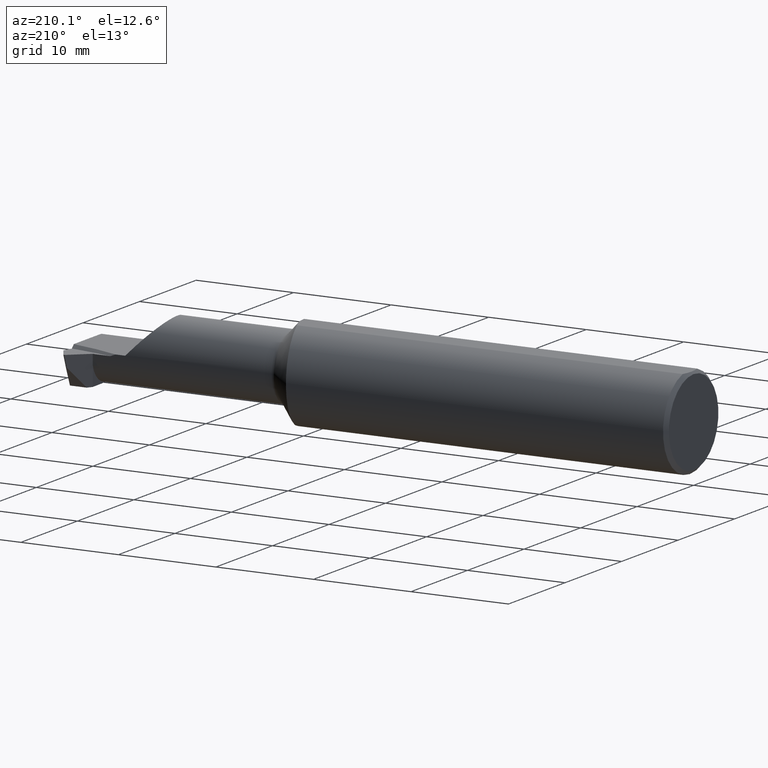
[diagram: clean part render]
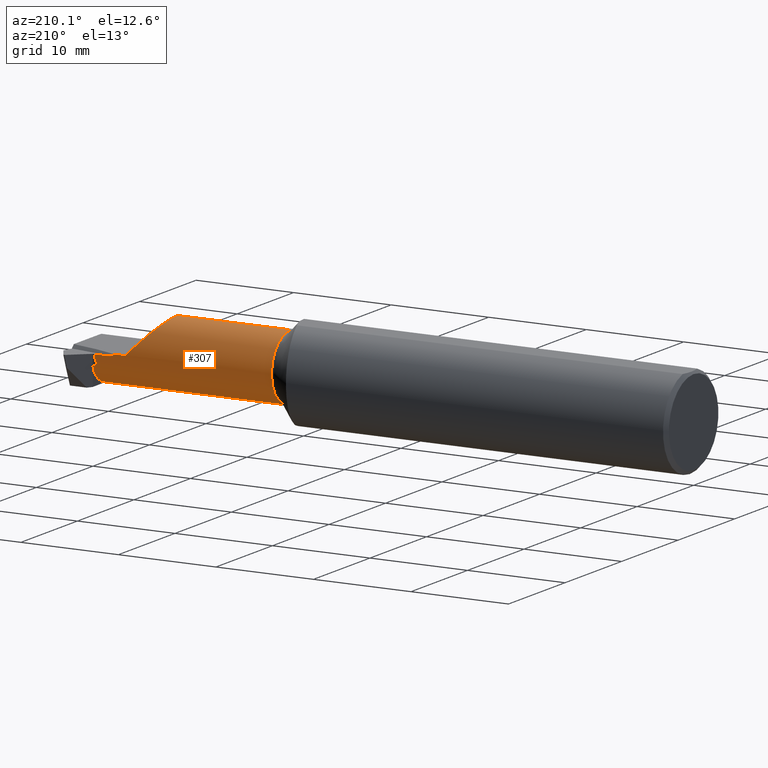
[diagram: same view with one face highlighted and labeled with its STEP entity id]
A machine part, auxiliary view. The second image highlights one B-rep face of the part: STEP entity #307.
In plain terms, the highlighted cylindrical surface (partial cylindrical patch) has radius 3.3782 mm, axis along (-1, -0, -0).
Its self-contained STEP definition (entity closure, byte-faithful):
#12 = VECTOR ( 'NONE', #880, 39.37007874015748143 ) ;
#18 = EDGE_CURVE ( 'NONE', #390, #544, #498, .T. ) ;
#27 = CIRCLE ( 'NONE', #253, 0.1330000000000000071 ) ;
#36 = FACE_OUTER_BOUND ( 'NONE', #327, .T. ) ;
#42 = VERTEX_POINT ( 'NONE', #507 ) ;
#49 = EDGE_CURVE ( 'NONE', #414, #195, #397, .T. ) ;
#66 = CARTESIAN_POINT ( 'NONE',  ( 1.650000000000000133, -0.05834999999999980480, -0.1330000000000000071 ) ) ;
#74 = VERTEX_POINT ( 'NONE', #1078 ) ;
#80 = VERTEX_POINT ( 'NONE', #268 ) ;
#90 = CARTESIAN_POINT ( 'NONE',  ( 2.377439043531619944, 0.07438306707720576672, -0.008422167433508244427 ) ) ;
#99 = AXIS2_PLACEMENT_3D ( 'NONE', #329, #141, #395 ) ;
#103 = CARTESIAN_POINT ( 'NONE',  ( 2.297510475739600544, 0.07465000000000018843, -0.002930700206672966993 ) ) ;
#106 = VERTEX_POINT ( 'NONE', #437 ) ;
#121 = ORIENTED_EDGE ( 'NONE', *, *, #530, .T. ) ;
#137 = DIRECTION ( 'NONE',  ( 0.000000000000000000, 0.000000000000000000, 1.000000000000000000 ) ) ;
#141 = DIRECTION ( 'NONE',  ( -1.000000000000000000, -0.000000000000000000, -0.000000000000000000 ) ) ;
#192 = DIRECTION ( 'NONE',  ( 0.000000000000000000, 0.000000000000000000, 1.000000000000000000 ) ) ;
#195 = VERTEX_POINT ( 'NONE', #350 ) ;
#200 = VECTOR ( 'NONE', #731, 39.37007874015748143 ) ;
#203 = CYLINDRICAL_SURFACE ( 'NONE', #993, 0.1330000000000000071 ) ;
#216 = VECTOR ( 'NONE', #433, 39.37007874015748143 ) ;
#221 = ORIENTED_EDGE ( 'NONE', *, *, #320, .T. ) ;
#224 = EDGE_CURVE ( 'NONE', #661, #544, #852, .T. ) ;
#225 = CARTESIAN_POINT ( 'NONE',  ( 2.250000000000000000, 0.07465000000000017455, -6.429183357567478880E-17 ) ) ;
#230 = CARTESIAN_POINT ( 'NONE',  ( 2.388308789459395953, 0.06397316657360097025, -0.05221152094516228609 ) ) ;
#252 = ORIENTED_EDGE ( 'NONE', *, *, #49, .T. ) ;
#253 = AXIS2_PLACEMENT_3D ( 'NONE', #826, #999, #192 ) ;
#259 = CARTESIAN_POINT ( 'NONE',  ( 1.650000000000000133, 0.07438306707720575284, -0.008422167433508244427 ) ) ;
#268 = CARTESIAN_POINT ( 'NONE',  ( 2.117649999999998922, -0.05834999999999981868, 0.1330000000000000071 ) ) ;
#273 =( BOUNDED_CURVE ( )  B_SPLINE_CURVE ( 3, ( #734, #485, #643, #399 ),
 .UNSPECIFIED., .F., .T. ) 
 B_SPLINE_CURVE_WITH_KNOTS ( ( 4, 4 ),
 ( 0.000000000000000000, 1.565909089294454715 ),
 .UNSPECIFIED. ) 
 CURVE ( )  GEOMETRIC_REPRESENTATION_ITEM ( )  RATIONAL_B_SPLINE_CURVE ( ( 1.000000000000000000, 0.8058883784621434510, 0.8058883784621434510, 1.000000000000000000 ) ) 
 REPRESENTATION_ITEM ( '' )  );
#282 = LINE ( 'NONE', #640, #1026 ) ;
#294 = LINE ( 'NONE', #468, #12 ) ;
#307 = ADVANCED_FACE ( 'NONE', ( #36 ), #203, .T. ) ;
#320 = EDGE_CURVE ( 'NONE', #484, #74, #294, .T. ) ;
#327 = EDGE_LOOP ( 'NONE', ( #951, #252, #121, #574, #737, #522, #221, #702, #875, #335, #462 ) ) ;
#329 = CARTESIAN_POINT ( 'NONE',  ( 2.250000000000000000, -0.05834999999999981868, 0.000000000000000000 ) ) ;
#335 = ORIENTED_EDGE ( 'NONE', *, *, #18, .F. ) ;
#339 = CARTESIAN_POINT ( 'NONE',  ( 2.304320662847810119, 0.07455367493385206545, -0.005733393521221588282 ) ) ;
#348 = CARTESIAN_POINT ( 'NONE',  ( 1.650000000000000133, -0.05834999999999981868, 0.1330000000000000071 ) ) ;
#350 = CARTESIAN_POINT ( 'NONE',  ( 1.660355339059327306, -0.05834999999999980480, -0.1330000000000000071 ) ) ;
#351 = B_SPLINE_CURVE_WITH_KNOTS ( 'NONE', 3,
 ( #1029, #103, #339, #844 ),
 .UNSPECIFIED., .F., .F.,
 ( 4, 4 ),
 ( 0.01613316286930787172, 0.01669038976711273783 ),
 .UNSPECIFIED. ) ;
#352 = DIRECTION ( 'NONE',  ( -1.000000000000000000, -0.000000000000000000, -0.000000000000000000 ) ) ;
#379 = EDGE_CURVE ( 'NONE', #42, #390, #282, .T. ) ;
#382 = DIRECTION ( 'NONE',  ( -1.000000000000000000, -0.000000000000000000, -0.000000000000000000 ) ) ;
#390 = VERTEX_POINT ( 'NONE', #584 ) ;
#395 = DIRECTION ( 'NONE',  ( 0.000000000000000000, 0.000000000000000000, 1.000000000000000000 ) ) ;
#397 = LINE ( 'NONE', #66, #200 ) ;
#399 = CARTESIAN_POINT ( 'NONE',  ( 2.250000000000000000, 0.07464841164465103873, 0.0006500000000000630707 ) ) ;
#414 = VERTEX_POINT ( 'NONE', #909 ) ;
#433 = DIRECTION ( 'NONE',  ( 1.000000000000000000, 0.000000000000000000, 0.000000000000000000 ) ) ;
#437 = CARTESIAN_POINT ( 'NONE',  ( 2.250000000000000000, 0.07464841164465103873, 0.0006500000000000630707 ) ) ;
#462 = ORIENTED_EDGE ( 'NONE', *, *, #379, .F. ) ;
#468 = CARTESIAN_POINT ( 'NONE',  ( 1.650000000000000133, 0.07465000000000018843, -6.429183357567480113E-17 ) ) ;
#484 = VERTEX_POINT ( 'NONE', #225 ) ;
#485 = CARTESIAN_POINT ( 'NONE',  ( 2.117649999999999366, 0.01925802714158484155, 0.1330000000000000349 ) ) ;
#488 = EDGE_CURVE ( 'NONE', #106, #484, #514, .T. ) ;
#498 =( BOUNDED_CURVE ( )  B_SPLINE_CURVE ( 3, ( #591, #501, #838, #90 ),
 .UNSPECIFIED., .F., .T. ) 
 B_SPLINE_CURVE_WITH_KNOTS ( ( 4, 4 ),
 ( 1.167374435702474011, 1.507429361145364854 ),
 .UNSPECIFIED. ) 
 CURVE ( )  GEOMETRIC_REPRESENTATION_ITEM ( )  RATIONAL_B_SPLINE_CURVE ( ( 1.000000000000000000, 0.9903867468867805224, 0.9903867468867805224, 1.000000000000000000 ) ) 
 REPRESENTATION_ITEM ( '' )  );
#501 = CARTESIAN_POINT ( 'NONE',  ( 2.371905451040526192, 0.06992012348188784976, -0.03827876075488841068 ) ) ;
#507 = CARTESIAN_POINT ( 'NONE',  ( 2.388308789459395953, 0.06397316657360097025, -0.05221152094516228609 ) ) ;
#514 = CIRCLE ( 'NONE', #99, 0.1330000000000000071 ) ;
#521 = LINE ( 'NONE', #348, #975 ) ;
#522 = ORIENTED_EDGE ( 'NONE', *, *, #488, .T. ) ;
#530 = EDGE_CURVE ( 'NONE', #195, #1057, #27, .T. ) ;
#544 = VERTEX_POINT ( 'NONE', #860 ) ;
#571 = CARTESIAN_POINT ( 'NONE',  ( 2.398797270268487658, -0.05834999999999983950, -0.1329999999999999793 ) ) ;
#574 = ORIENTED_EDGE ( 'NONE', *, *, #969, .F. ) ;
#584 = CARTESIAN_POINT ( 'NONE',  ( 2.369323166573600759, 0.06397316657360098413, -0.05221152094516220282 ) ) ;
#591 = CARTESIAN_POINT ( 'NONE',  ( 2.369323166573600759, 0.06397316657360098413, -0.05221152094516220282 ) ) ;
#610 = EDGE_CURVE ( 'NONE', #74, #661, #351, .T. ) ;
#627 = CARTESIAN_POINT ( 'NONE',  ( 2.311174482544572584, 0.07438306707720547528, -0.008422167433508362389 ) ) ;
#631 = CARTESIAN_POINT ( 'NONE',  ( 1.660355339059327306, -0.05834999999999981868, 0.1330000000000000071 ) ) ;
#640 = CARTESIAN_POINT ( 'NONE',  ( 1.650000000000000133, 0.06397316657360095637, -0.05221152094516229303 ) ) ;
#643 = CARTESIAN_POINT ( 'NONE',  ( 2.172392899693941004, 0.07426912429395904347, 0.07825710030605810552 ) ) ;
#661 = VERTEX_POINT ( 'NONE', #627 ) ;
#702 = ORIENTED_EDGE ( 'NONE', *, *, #610, .T. ) ;
#721 = CARTESIAN_POINT ( 'NONE',  ( 1.650000000000000133, -0.05834999999999981868, 0.000000000000000000 ) ) ;
#731 = DIRECTION ( 'NONE',  ( -1.000000000000000000, -0.000000000000000000, -0.000000000000000000 ) ) ;
#734 = CARTESIAN_POINT ( 'NONE',  ( 2.117649999999998922, -0.05834999999999981868, 0.1330000000000000071 ) ) ;
#737 = ORIENTED_EDGE ( 'NONE', *, *, #771, .T. ) ;
#771 = EDGE_CURVE ( 'NONE', #80, #106, #273, .T. ) ;
#826 = CARTESIAN_POINT ( 'NONE',  ( 1.660355339059327306, -0.05834999999999981868, 0.000000000000000000 ) ) ;
#838 = CARTESIAN_POINT ( 'NONE',  ( 2.374637002455004975, 0.07342377177427721058, -0.02354062818553168124 ) ) ;
#839 =( BOUNDED_CURVE ( )  B_SPLINE_CURVE ( 3, ( #571, #1070, #984, #230 ),
 .UNSPECIFIED., .F., .F. ) 
 B_SPLINE_CURVE_WITH_KNOTS ( ( 4, 4 ),
 ( 3.324852225049197862, 4.492226660751670764 ),
 .UNSPECIFIED. ) 
 CURVE ( )  GEOMETRIC_REPRESENTATION_ITEM ( )  RATIONAL_B_SPLINE_CURVE ( ( 1.000000000000000000, 0.8896241898414404270, 0.8896241898414404270, 1.000000000000000000 ) ) 
 REPRESENTATION_ITEM ( '' )  );
#844 = CARTESIAN_POINT ( 'NONE',  ( 2.311174482544572584, 0.07438306707720547528, -0.008422167433508362389 ) ) ;
#851 = EDGE_CURVE ( 'NONE', #414, #42, #839, .T. ) ;
#852 = LINE ( 'NONE', #259, #216 ) ;
#860 = CARTESIAN_POINT ( 'NONE',  ( 2.377439043531619944, 0.07438306707720576672, -0.008422167433508244427 ) ) ;
#875 = ORIENTED_EDGE ( 'NONE', *, *, #224, .T. ) ;
#880 = DIRECTION ( 'NONE',  ( 1.000000000000000000, 0.000000000000000000, 0.000000000000000000 ) ) ;
#909 = CARTESIAN_POINT ( 'NONE',  ( 2.398797270268487658, -0.05834999999999983950, -0.1329999999999999793 ) ) ;
#951 = ORIENTED_EDGE ( 'NONE', *, *, #851, .F. ) ;
#963 = DIRECTION ( 'NONE',  ( -1.000000000000000000, -0.000000000000000000, -0.000000000000000000 ) ) ;
#969 = EDGE_CURVE ( 'NONE', #80, #1057, #521, .T. ) ;
#975 = VECTOR ( 'NONE', #352, 39.37007874015748143 ) ;
#984 = CARTESIAN_POINT ( 'NONE',  ( 2.393835302517310915, 0.04241050335030133872, -0.1027293606381376595 ) ) ;
#993 = AXIS2_PLACEMENT_3D ( 'NONE', #721, #382, #137 ) ;
#999 = DIRECTION ( 'NONE',  ( 1.000000000000000000, 0.000000000000000000, 0.000000000000000000 ) ) ;
#1026 = VECTOR ( 'NONE', #963, 39.37007874015748143 ) ;
#1029 = CARTESIAN_POINT ( 'NONE',  ( 2.290749082609245590, 0.07465000000000018843, -1.347024539874834217E-16 ) ) ;
#1057 = VERTEX_POINT ( 'NONE', #631 ) ;
#1070 = CARTESIAN_POINT ( 'NONE',  ( 2.397765231929774643, -0.003422770208879028549, -0.1330000000000000626 ) ) ;
#1078 = CARTESIAN_POINT ( 'NONE',  ( 2.290749082609245590, 0.07465000000000018843, -1.347024539874834217E-16 ) ) ;